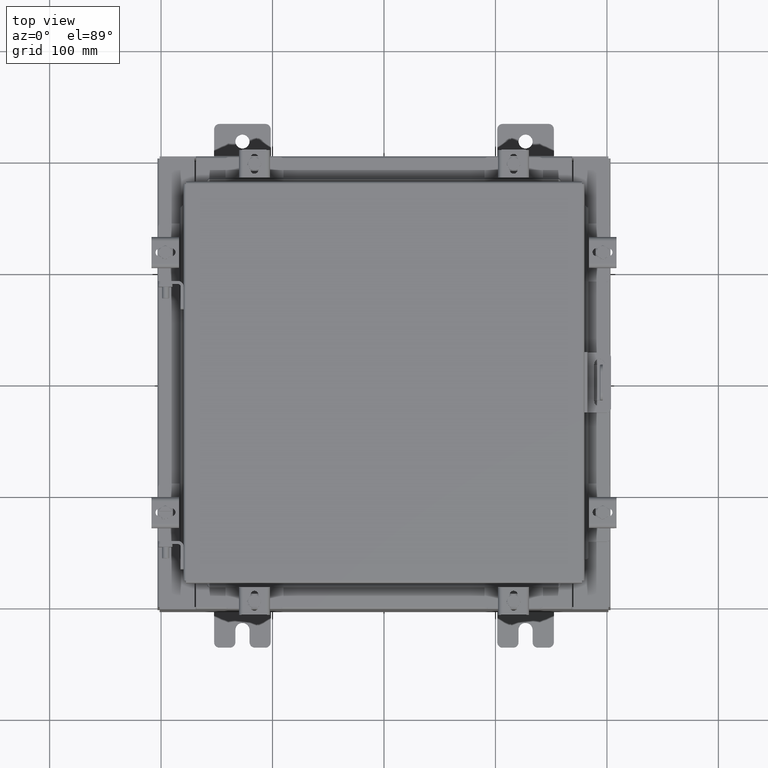
[diagram: clean part render]
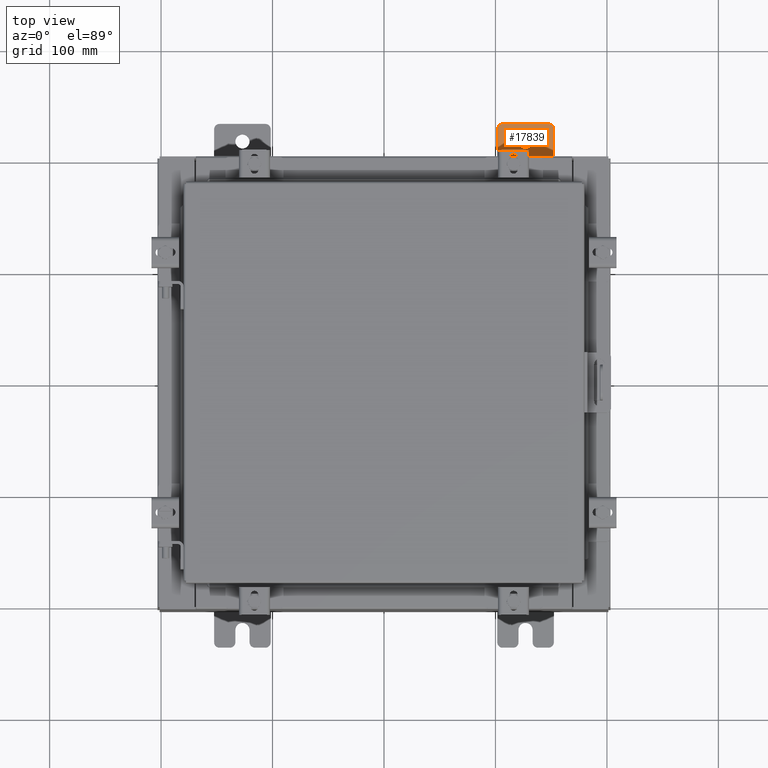
[diagram: same view with one face highlighted and labeled with its STEP entity id]
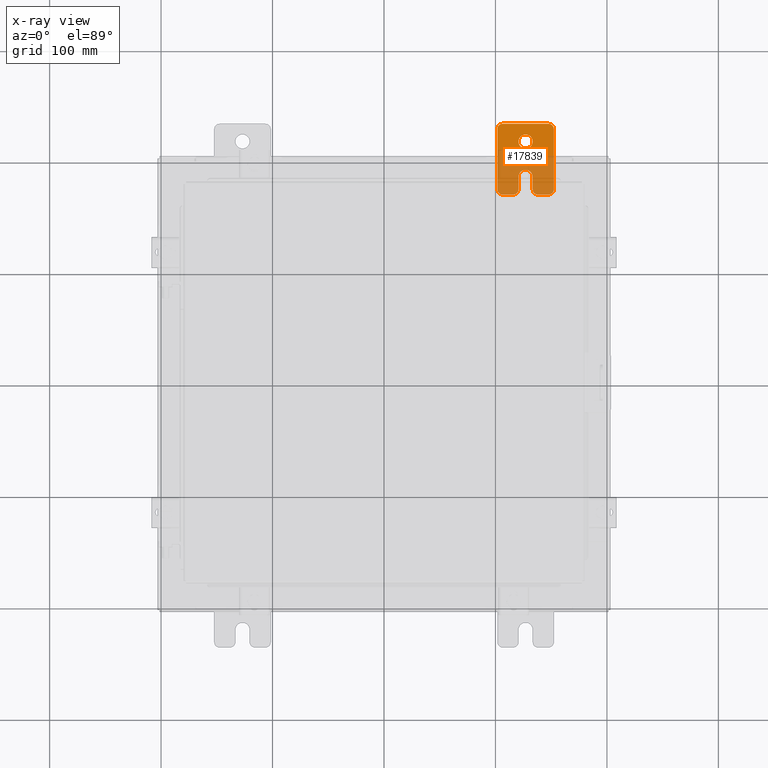
[diagram: x-ray of the same camera — body ghosted, the highlighted face saturated]
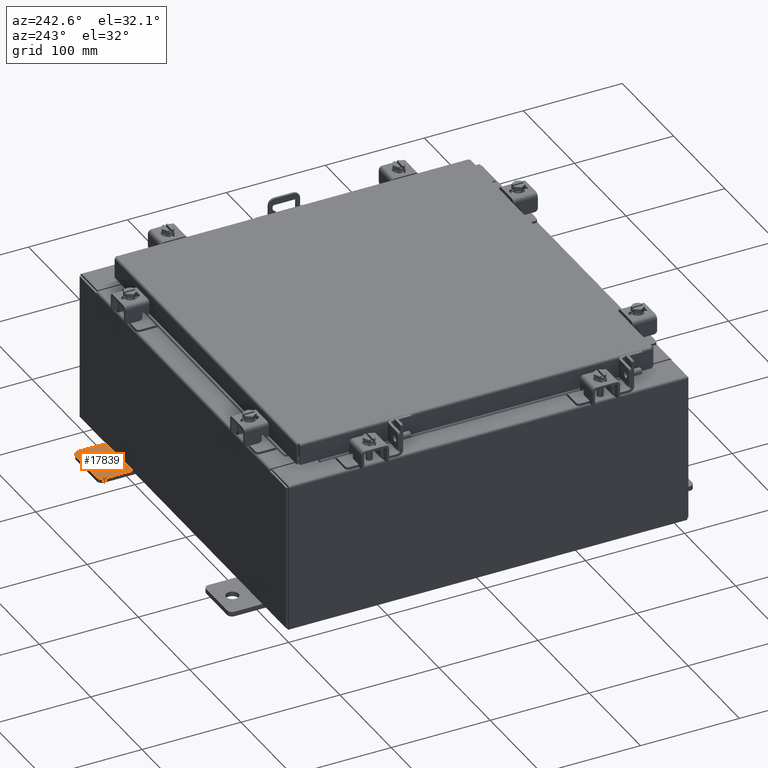
[diagram: same view with one face highlighted and labeled with its STEP entity id]
A machine part, top view. The second image highlights one B-rep face of the part: STEP entity #17839.
The next image is the same camera in x-ray: the body ghosted, the highlighted face saturated — about 58% of this face is hidden behind the body in this view.
A second angle (auxiliary view) of the same face is appended — the face is thin or edge-on in the first view.
In plain terms, the highlighted planar face has unit normal (0, 0, -1).
Its self-contained STEP definition (entity closure, byte-faithful):
#175 = AXIS2_PLACEMENT_3D ( 'NONE', #877, #12741, #2575 ) ;
#824 = VERTEX_POINT ( 'NONE', #6285 ) ;
#877 = CARTESIAN_POINT ( 'NONE',  ( -0.1879999999999997800, -1.060000000000002100, 0.4400000000000016700 ) ) ;
#914 = ORIENTED_EDGE ( 'NONE', *, *, #9634, .T. ) ;
#983 = CIRCLE ( 'NONE', #5981, 0.2499999999999999200 ) ;
#1296 = EDGE_CURVE ( 'NONE', #9189, #13369, #4510, .T. ) ;
#1405 = CARTESIAN_POINT ( 'NONE',  ( -0.1880000000000010000, 0.6249999999999992200, -7.703811342100550500E-020 ) ) ;
#1577 = DIRECTION ( 'NONE',  ( -1.000000000000000000, -0.0000000000000000000, 0.0000000000000000000 ) ) ;
#1729 = EDGE_CURVE ( 'NONE', #5364, #12223, #11123, .T. ) ;
#1828 = VECTOR ( 'NONE', #16110, 39.37007874015748100 ) ;
#2021 = EDGE_CURVE ( 'NONE', #824, #18878, #19375, .T. ) ;
#2282 = CARTESIAN_POINT ( 'NONE',  ( -0.1879999999999997800, -1.250000000000002200, 0.9999999999999992200 ) ) ;
#2409 = CARTESIAN_POINT ( 'NONE',  ( -0.1880000000000005800, -1.250000000000003800, 0.2500000000000005000 ) ) ;
#2571 = DIRECTION ( 'NONE',  ( 0.0000000000000000000, 1.000000000000000000, -1.639108796198558100E-015 ) ) ;
#2575 = DIRECTION ( 'NONE',  ( 0.0000000000000000000, 0.0000000000000000000, -1.000000000000000000 ) ) ;
#2690 = FACE_BOUND ( 'NONE', #9826, .T. ) ;
#3078 = LINE ( 'NONE', #11423, #20657 ) ;
#3100 = DIRECTION ( 'NONE',  ( 0.0000000000000000000, 0.0000000000000000000, -1.000000000000000000 ) ) ;
#3162 = ORIENTED_EDGE ( 'NONE', *, *, #10052, .F. ) ;
#3278 = EDGE_CURVE ( 'NONE', #7571, #16751, #17187, .T. ) ;
#3470 = AXIS2_PLACEMENT_3D ( 'NONE', #20135, #9896, #21868 ) ;
#3512 = EDGE_CURVE ( 'NONE', #5364, #4875, #13874, .T. ) ;
#3828 = CARTESIAN_POINT ( 'NONE',  ( -0.1880000000000004700, -1.060000000000002100, 0.2500000000000005000 ) ) ;
#3833 = ORIENTED_EDGE ( 'NONE', *, *, #13677, .F. ) ;
#3875 = ORIENTED_EDGE ( 'NONE', *, *, #3278, .T. ) ;
#3892 = CIRCLE ( 'NONE', #10521, 0.1900000000000011100 ) ;
#3908 = VERTEX_POINT ( 'NONE', #9223 ) ;
#4071 = CARTESIAN_POINT ( 'NONE',  ( -0.1879999999999997800, -1.060000000000004500, -1.000000000000006400 ) ) ;
#4109 = DIRECTION ( 'NONE',  ( 6.556435184794182400E-016, 1.000000000000000000, 0.0000000000000000000 ) ) ;
#4127 = CIRCLE ( 'NONE', #6895, 0.1900000000000011100 ) ;
#4443 = CARTESIAN_POINT ( 'NONE',  ( -0.1879999999999997800, -1.060000000000004100, -0.8100000000000050500 ) ) ;
#4474 = EDGE_LOOP ( 'NONE', ( #21243, #7627, #3833, #11722, #3162, #17020, #16368, #14796, #5401, #10186, #7919, #14777, #7239, #6038 ) ) ;
#4510 = LINE ( 'NONE', #2282, #7939 ) ;
#4763 = DIRECTION ( 'NONE',  ( 0.0000000000000000000, 0.0000000000000000000, -1.000000000000000000 ) ) ;
#4828 = DIRECTION ( 'NONE',  ( -1.000000000000000000, -0.0000000000000000000, 0.0000000000000000000 ) ) ;
#4875 = VERTEX_POINT ( 'NONE', #16158 ) ;
#4906 = DIRECTION ( 'NONE',  ( -1.000000000000000000, -0.0000000000000000000, 0.0000000000000000000 ) ) ;
#4951 = DIRECTION ( 'NONE',  ( -1.000000000000000000, -0.0000000000000000000, 0.0000000000000000000 ) ) ;
#5058 = DIRECTION ( 'NONE',  ( 1.000000000000000000, 0.0000000000000000000, -0.0000000000000000000 ) ) ;
#5364 = VERTEX_POINT ( 'NONE', #4071 ) ;
#5401 = ORIENTED_EDGE ( 'NONE', *, *, #9940, .F. ) ;
#5840 = AXIS2_PLACEMENT_3D ( 'NONE', #20302, #5058, #16944 ) ;
#5969 = LINE ( 'NONE', #11199, #14485 ) ;
#5981 = AXIS2_PLACEMENT_3D ( 'NONE', #1405, #13275, #3100 ) ;
#6038 = ORIENTED_EDGE ( 'NONE', *, *, #10355, .T. ) ;
#6285 = CARTESIAN_POINT ( 'NONE',  ( -0.1880000000000001900, -0.6249999999999992200, -0.2499999999999998600 ) ) ;
#6661 = VERTEX_POINT ( 'NONE', #16998 ) ;
#6665 = FACE_OUTER_BOUND ( 'NONE', #4474, .T. ) ;
#6895 = AXIS2_PLACEMENT_3D ( 'NONE', #9121, #21068, #10837 ) ;
#6906 = CARTESIAN_POINT ( 'NONE',  ( -0.1879999999999997800, -1.250000000000002400, 0.8099999999999980500 ) ) ;
#6910 = AXIS2_PLACEMENT_3D ( 'NONE', #4443, #4828, #4763 ) ;
#7239 = ORIENTED_EDGE ( 'NONE', *, *, #13095, .F. ) ;
#7571 = VERTEX_POINT ( 'NONE', #13888 ) ;
#7627 = ORIENTED_EDGE ( 'NONE', *, *, #11239, .T. ) ;
#7919 = ORIENTED_EDGE ( 'NONE', *, *, #2021, .F. ) ;
#7939 = VECTOR ( 'NONE', #13364, 39.37007874015748100 ) ;
#8137 = CARTESIAN_POINT ( 'NONE',  ( -0.1880000000000004700, -1.060000000000003400, -0.2499999999999994400 ) ) ;
#9013 = DIRECTION ( 'NONE',  ( 0.0000000000000000000, 0.0000000000000000000, -1.000000000000000000 ) ) ;
#9121 = CARTESIAN_POINT ( 'NONE',  ( -0.1879999999999997800, 1.059999999999996300, 0.8099999999999938400 ) ) ;
#9154 = CIRCLE ( 'NONE', #175, 0.1900000000000011400 ) ;
#9189 = VERTEX_POINT ( 'NONE', #6906 ) ;
#9223 = CARTESIAN_POINT ( 'NONE',  ( -0.1879999999999997800, -1.060000000000001200, 0.9999999999999988900 ) ) ;
#9354 = VECTOR ( 'NONE', #2571, 39.37007874015748100 ) ;
#9540 = CIRCLE ( 'NONE', #17556, 0.1900000000000011100 ) ;
#9634 = EDGE_CURVE ( 'NONE', #16751, #7571, #983, .T. ) ;
#9677 = EDGE_CURVE ( 'NONE', #15079, #18878, #3892, .T. ) ;
#9826 = EDGE_LOOP ( 'NONE', ( #3875, #914 ) ) ;
#9868 = CARTESIAN_POINT ( 'NONE',  ( -0.1879999999999997800, -1.250000000000003100, 0.4400000000000020000 ) ) ;
#9885 = VERTEX_POINT ( 'NONE', #21422 ) ;
#9896 = DIRECTION ( 'NONE',  ( -1.000000000000000000, 6.523827964459549700E-016, 5.163192708025532000E-017 ) ) ;
#9940 = EDGE_CURVE ( 'NONE', #15079, #12223, #3078, .T. ) ;
#10003 = CARTESIAN_POINT ( 'NONE',  ( -0.1879999999999997800, 1.249999999999994200, -1.000000000000010400 ) ) ;
#10052 = EDGE_CURVE ( 'NONE', #9885, #6661, #10490, .T. ) ;
#10092 = PLANE ( 'NONE',  #5840 ) ;
#10186 = ORIENTED_EDGE ( 'NONE', *, *, #9677, .T. ) ;
#10294 = VERTEX_POINT ( 'NONE', #3828 ) ;
#10355 = EDGE_CURVE ( 'NONE', #10294, #13369, #9154, .T. ) ;
#10490 = LINE ( 'NONE', #10003, #15059 ) ;
#10521 = AXIS2_PLACEMENT_3D ( 'NONE', #15161, #4951, #16843 ) ;
#10564 = DIRECTION ( 'NONE',  ( 1.000000000000000000, -0.0000000000000000000, -5.163192708025532000E-017 ) ) ;
#10635 = CARTESIAN_POINT ( 'NONE',  ( -0.1880000000000010000, 0.6249999999999992200, -7.703811342100550500E-020 ) ) ;
#10837 = DIRECTION ( 'NONE',  ( 0.0000000000000000000, 0.0000000000000000000, -1.000000000000000000 ) ) ;
#11028 = CIRCLE ( 'NONE', #3470, 0.2499999999999999200 ) ;
#11123 = CIRCLE ( 'NONE', #6910, 0.1900000000000011100 ) ;
#11199 = CARTESIAN_POINT ( 'NONE',  ( -0.1879999999999997800, 1.249999999999997600, 0.9999999999999951200 ) ) ;
#11239 = EDGE_CURVE ( 'NONE', #9189, #3908, #9540, .T. ) ;
#11423 = CARTESIAN_POINT ( 'NONE',  ( -0.1879999999999997800, -1.250000000000002200, 0.9999999999999992200 ) ) ;
#11581 = CIRCLE ( 'NONE', #16126, 0.1900000000000011100 ) ;
#11720 = CARTESIAN_POINT ( 'NONE',  ( -0.1879999999999997800, 1.059999999999993600, -0.8100000000000089400 ) ) ;
#11722 = ORIENTED_EDGE ( 'NONE', *, *, #13546, .T. ) ;
#12223 = VERTEX_POINT ( 'NONE', #16374 ) ;
#12636 = VECTOR ( 'NONE', #4109, 39.37007874015748100 ) ;
#12741 = DIRECTION ( 'NONE',  ( -1.000000000000000000, -0.0000000000000000000, 0.0000000000000000000 ) ) ;
#13095 = EDGE_CURVE ( 'NONE', #10294, #20401, #21199, .T. ) ;
#13275 = DIRECTION ( 'NONE',  ( 1.000000000000000000, -0.0000000000000000000, -5.163192708025532000E-017 ) ) ;
#13356 = CARTESIAN_POINT ( 'NONE',  ( -0.1880000000000001900, -0.6249999999999992200, 0.2500000000000005000 ) ) ;
#13364 = DIRECTION ( 'NONE',  ( 0.0000000000000000000, -1.639108796198553600E-015, -1.000000000000000000 ) ) ;
#13369 = VERTEX_POINT ( 'NONE', #9868 ) ;
#13435 = DIRECTION ( 'NONE',  ( 0.0000000000000000000, 0.0000000000000000000, -1.000000000000000000 ) ) ;
#13546 = EDGE_CURVE ( 'NONE', #18551, #6661, #4127, .T. ) ;
#13677 = EDGE_CURVE ( 'NONE', #18551, #3908, #5969, .T. ) ;
#13874 = LINE ( 'NONE', #19510, #9354 ) ;
#13888 = CARTESIAN_POINT ( 'NONE',  ( -0.1880000000000010000, 0.6249999999999992200, -0.2499999999999999200 ) ) ;
#13897 = AXIS2_PLACEMENT_3D ( 'NONE', #10635, #10564, #9013 ) ;
#14485 = VECTOR ( 'NONE', #18081, 39.37007874015748100 ) ;
#14777 = ORIENTED_EDGE ( 'NONE', *, *, #21082, .F. ) ;
#14796 = ORIENTED_EDGE ( 'NONE', *, *, #1729, .T. ) ;
#15059 = VECTOR ( 'NONE', #16776, 39.37007874015748100 ) ;
#15079 = VERTEX_POINT ( 'NONE', #21236 ) ;
#15120 = CARTESIAN_POINT ( 'NONE',  ( -0.1879999999999997800, -1.060000000000001600, 0.8099999999999978300 ) ) ;
#15161 = CARTESIAN_POINT ( 'NONE',  ( -0.1879999999999997800, -1.060000000000003400, -0.4400000000000005000 ) ) ;
#15607 = CARTESIAN_POINT ( 'NONE',  ( -0.1879999999999997800, 1.059999999999996500, 0.9999999999999953400 ) ) ;
#16110 = DIRECTION ( 'NONE',  ( -6.556435184794182400E-016, -1.000000000000000000, -1.639108796198545600E-016 ) ) ;
#16126 = AXIS2_PLACEMENT_3D ( 'NONE', #11720, #1577, #13435 ) ;
#16158 = CARTESIAN_POINT ( 'NONE',  ( -0.1879999999999997800, 1.059999999999993400, -1.000000000000010000 ) ) ;
#16368 = ORIENTED_EDGE ( 'NONE', *, *, #3512, .F. ) ;
#16374 = CARTESIAN_POINT ( 'NONE',  ( -0.1879999999999997800, -1.250000000000005300, -0.8100000000000047200 ) ) ;
#16751 = VERTEX_POINT ( 'NONE', #17323 ) ;
#16776 = DIRECTION ( 'NONE',  ( 0.0000000000000000000, 1.639108796198553600E-015, 1.000000000000000000 ) ) ;
#16807 = DIRECTION ( 'NONE',  ( 0.0000000000000000000, 7.189073667537492800E-016, -1.000000000000000000 ) ) ;
#16843 = DIRECTION ( 'NONE',  ( 0.0000000000000000000, 0.0000000000000000000, -1.000000000000000000 ) ) ;
#16944 = DIRECTION ( 'NONE',  ( -0.0000000000000000000, 0.0000000000000000000, -1.000000000000000000 ) ) ;
#16998 = CARTESIAN_POINT ( 'NONE',  ( -0.1879999999999997800, 1.249999999999997300, 0.8099999999999935000 ) ) ;
#17020 = ORIENTED_EDGE ( 'NONE', *, *, #20404, .T. ) ;
#17187 = CIRCLE ( 'NONE', #13897, 0.2499999999999999200 ) ;
#17323 = CARTESIAN_POINT ( 'NONE',  ( -0.1880000000000010000, 0.6249999999999992200, 0.2499999999999999200 ) ) ;
#17556 = AXIS2_PLACEMENT_3D ( 'NONE', #15120, #4906, #16807 ) ;
#17839 = ADVANCED_FACE ( 'NONE', ( #2690, #6665 ), #10092, .F. ) ;
#18081 = DIRECTION ( 'NONE',  ( 0.0000000000000000000, -1.000000000000000000, 1.639108796198558100E-015 ) ) ;
#18551 = VERTEX_POINT ( 'NONE', #15607 ) ;
#18697 = CARTESIAN_POINT ( 'NONE',  ( -0.1880000000000001900, -0.6249999999999992200, -0.2499999999999993900 ) ) ;
#18878 = VERTEX_POINT ( 'NONE', #8137 ) ;
#19375 = LINE ( 'NONE', #18697, #1828 ) ;
#19510 = CARTESIAN_POINT ( 'NONE',  ( -0.1879999999999997800, -1.250000000000005600, -1.000000000000006200 ) ) ;
#19922 = DIRECTION ( 'NONE',  ( 0.0000000000000000000, -1.639108796198553600E-015, -1.000000000000000000 ) ) ;
#20135 = CARTESIAN_POINT ( 'NONE',  ( -0.1880000000000001900, -0.6249999999999992200, 6.829619984160658000E-017 ) ) ;
#20302 = CARTESIAN_POINT ( 'NONE',  ( -0.1879999999999997800, 0.0000000000000000000, 0.0000000000000000000 ) ) ;
#20401 = VERTEX_POINT ( 'NONE', #13356 ) ;
#20404 = EDGE_CURVE ( 'NONE', #9885, #4875, #11581, .T. ) ;
#20657 = VECTOR ( 'NONE', #19922, 39.37007874015748100 ) ;
#21068 = DIRECTION ( 'NONE',  ( -1.000000000000000000, -0.0000000000000000000, 0.0000000000000000000 ) ) ;
#21082 = EDGE_CURVE ( 'NONE', #20401, #824, #11028, .T. ) ;
#21199 = LINE ( 'NONE', #2409, #12636 ) ;
#21236 = CARTESIAN_POINT ( 'NONE',  ( -0.1879999999999997800, -1.250000000000004700, -0.4400000000000002200 ) ) ;
#21243 = ORIENTED_EDGE ( 'NONE', *, *, #1296, .F. ) ;
#21422 = CARTESIAN_POINT ( 'NONE',  ( -0.1879999999999997800, 1.249999999999994700, -0.8100000000000092700 ) ) ;
#21868 = DIRECTION ( 'NONE',  ( -6.829619984160660000E-016, -1.000000000000000000, 0.0000000000000000000 ) ) ;